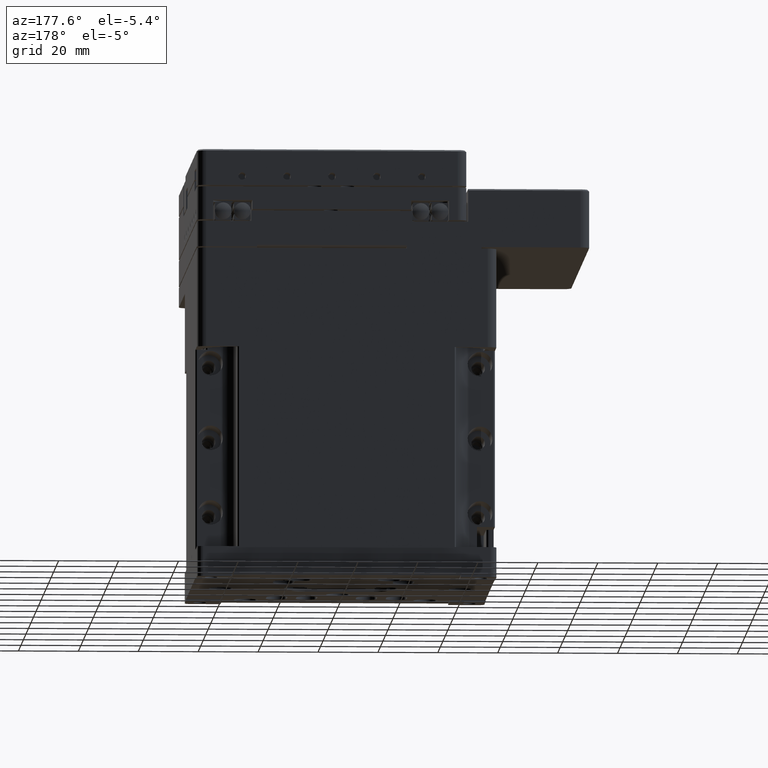
[diagram: clean part render]
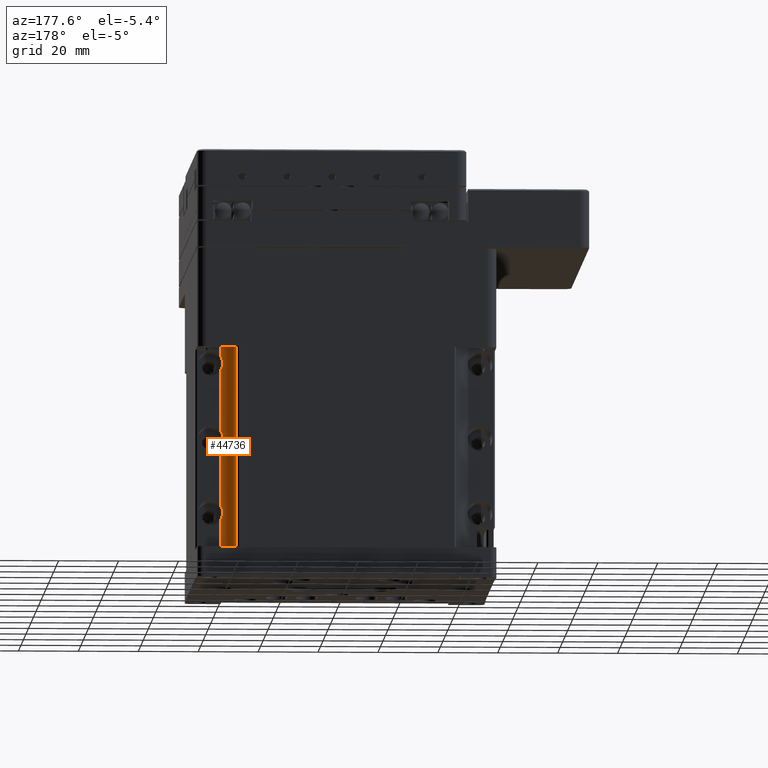
[diagram: same view with one face highlighted and labeled with its STEP entity id]
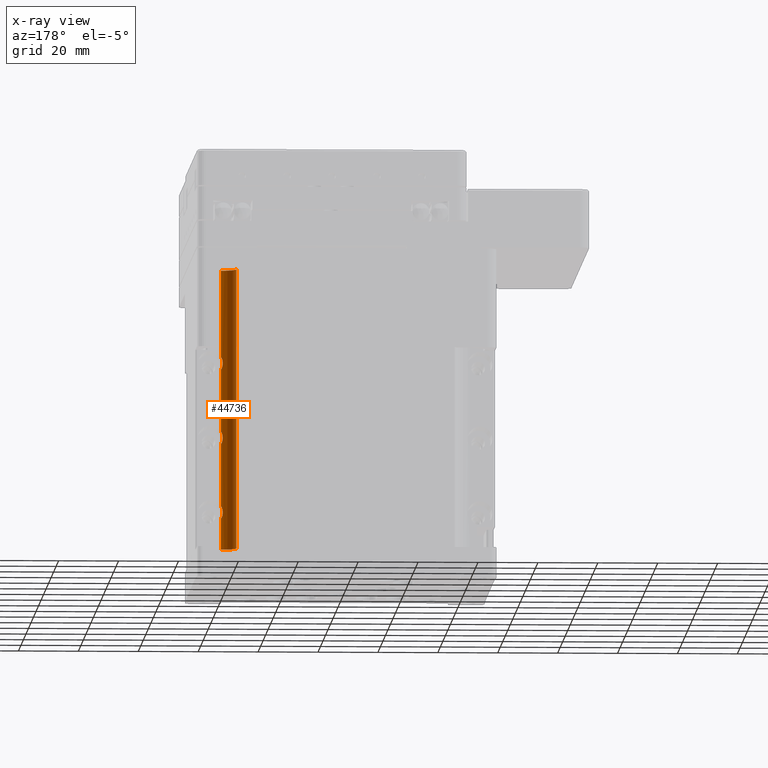
[diagram: x-ray of the same camera — body ghosted, the highlighted face saturated]
A machine part, auxiliary view. The second image highlights one B-rep face of the part: STEP entity #44736.
The next image is the same camera in x-ray: the body ghosted, the highlighted face saturated — about 0% of this face is hidden behind the body in this view.
In plain terms, the highlighted cylindrical surface (edge-blend (fillet) strip) has radius 5 mm, axis along (0, 0, 1).
Its self-contained STEP definition (entity closure, byte-faithful):
#1167 = VERTEX_POINT ( 'NONE', #78454 ) ;
#3674 = CARTESIAN_POINT ( 'NONE',  ( 41.49999999999998579, 36.50000000000000711, 64.68303114957161881 ) ) ;
#4970 = VECTOR ( 'NONE', #51938, 1000.000000000000000 ) ;
#5713 = LINE ( 'NONE', #56951, #57765 ) ;
#6496 = DIRECTION ( 'NONE',  ( 1.000000000000000000, 0.000000000000000000, 0.000000000000000000 ) ) ;
#8106 = CYLINDRICAL_SURFACE ( 'NONE', #36234, 4.999999999999997335 ) ;
#8516 = CARTESIAN_POINT ( 'NONE',  ( 40.87513435997327349, 36.53919936401598534, 37.30621440399449540 ) ) ;
#8536 = CARTESIAN_POINT ( 'NONE',  ( 40.87473429926586022, 36.53924976684502468, 12.87892680073399987 ) ) ;
#8968 = CARTESIAN_POINT ( 'NONE',  ( 41.13827894569544696, 36.51199270938661101, 38.99937102640799935 ) ) ;
#9070 = VERTEX_POINT ( 'NONE', #19261 ) ;
#9450 = CARTESIAN_POINT ( 'NONE',  ( 40.88845584936492372, 36.53746724997755280, 37.11601330408435473 ) ) ;
#9472 = CARTESIAN_POINT ( 'NONE',  ( 40.88845584936493793, 36.53746724997755990, 12.11601330408435651 ) ) ;
#9563 = LINE ( 'NONE', #88581, #44350 ) ;
#9842 = CARTESIAN_POINT ( 'NONE',  ( 41.49999999999998579, 36.50000000000001421, 202.7520022699813182 ) ) ;
#14062 = CARTESIAN_POINT ( 'NONE',  ( 41.29528010496476753, 36.50000000000001421, 64.35480879105701035 ) ) ;
#14524 = CARTESIAN_POINT ( 'NONE',  ( 41.49999999999998579, 36.50000000000000711, 64.68303114957161881 ) ) ;
#15126 = CARTESIAN_POINT ( 'NONE',  ( 40.92887390482040644, 36.53161255176846822, 13.26611702320115960 ) ) ;
#15458 = CARTESIAN_POINT ( 'NONE',  ( 41.49999999999999289, 36.50000000000000711, 60.31696885042837408 ) ) ;
#16642 = VERTEX_POINT ( 'NONE', #37650 ) ;
#18650 = VECTOR ( 'NONE', #59249, 1000.000000000000000 ) ;
#19261 = CARTESIAN_POINT ( 'NONE',  ( 36.49999999999999289, 41.50000000000000711, 0.000000000000000000 ) ) ;
#21601 = CARTESIAN_POINT ( 'NONE',  ( 40.92887390482040644, 36.53161255176846112, 63.26611702320113295 ) ) ;
#22224 = ORIENTED_EDGE ( 'NONE', *, *, #41315, .F. ) ;
#22233 = DIRECTION ( 'NONE',  ( 0.000000000000000000, 0.000000000000000000, 1.000000000000000000 ) ) ;
#22309 = ORIENTED_EDGE ( 'NONE', *, *, #45845, .F. ) ;
#23102 = CARTESIAN_POINT ( 'NONE',  ( 41.14069139553749466, 36.51179586516665410, 35.99385728734208101 ) ) ;
#23249 = LINE ( 'NONE', #23698, #4970 ) ;
#23698 = CARTESIAN_POINT ( 'NONE',  ( 41.49999999999998579, 36.50000000000001421, 202.7520022699813182 ) ) ;
#24019 = CARTESIAN_POINT ( 'NONE',  ( 40.87473429926583890, 36.53924976684502468, 37.87892680073399987 ) ) ;
#24431 = EDGE_CURVE ( 'NONE', #9070, #70181, #5713, .T. ) ;
#26539 = VERTEX_POINT ( 'NONE', #78280 ) ;
#26766 = CARTESIAN_POINT ( 'NONE',  ( 41.49999999999998579, 41.50000000000000711, 0.000000000000000000 ) ) ;
#28123 = CARTESIAN_POINT ( 'NONE',  ( 41.49999999999998579, 36.50000000000000711, 39.68303114957166144 ) ) ;
#28355 = FACE_OUTER_BOUND ( 'NONE', #88163, .T. ) ;
#28575 = VERTEX_POINT ( 'NONE', #39310 ) ;
#28658 = CARTESIAN_POINT ( 'NONE',  ( 40.88845584936495925, 36.53746724997754569, 62.11601330408434052 ) ) ;
#29132 = CARTESIAN_POINT ( 'NONE',  ( 40.87473429926586732, 36.53924976684501047, 62.87892680073396434 ) ) ;
#29622 = DIRECTION ( 'NONE',  ( -0.000000000000000000, -0.000000000000000000, -1.000000000000000000 ) ) ;
#30081 = CARTESIAN_POINT ( 'NONE',  ( 41.49999999999998579, 41.50000000000000711, 93.50000000000000000 ) ) ;
#30499 = ORIENTED_EDGE ( 'NONE', *, *, #24431, .T. ) ;
#31098 = CARTESIAN_POINT ( 'NONE',  ( 40.94166196744672703, 36.53119972381401936, 36.73702326457922140 ) ) ;
#31119 = CARTESIAN_POINT ( 'NONE',  ( 40.94166196744674124, 36.53119972381401936, 11.73702326457924805 ) ) ;
#32143 = ORIENTED_EDGE ( 'NONE', *, *, #51724, .F. ) ;
#34483 = EDGE_CURVE ( 'NONE', #68869, #38554, #53986, .T. ) ;
#36234 = AXIS2_PLACEMENT_3D ( 'NONE', #57983, #22233, #57036 ) ;
#36774 = CARTESIAN_POINT ( 'NONE',  ( 41.49999999999998579, 36.50000000000000711, 14.68303114957164368 ) ) ;
#37650 = CARTESIAN_POINT ( 'NONE',  ( 41.49999999999998579, 36.50000000000000711, 10.31696885042837586 ) ) ;
#38554 = VERTEX_POINT ( 'NONE', #44610 ) ;
#39310 = CARTESIAN_POINT ( 'NONE',  ( 41.49999999999999289, 36.50000000000000711, 60.31696885042837408 ) ) ;
#39869 = DIRECTION ( 'NONE',  ( 0.000000000000000000, 0.000000000000000000, 1.000000000000000000 ) ) ;
#40491 = ORIENTED_EDGE ( 'NONE', *, *, #42195, .F. ) ;
#41315 = EDGE_CURVE ( 'NONE', #38554, #70181, #52483, .T. ) ;
#42195 = EDGE_CURVE ( 'NONE', #28575, #68869, #53912, .T. ) ;
#42241 = DIRECTION ( 'NONE',  ( -0.000000000000000000, -0.000000000000000000, -1.000000000000000000 ) ) ;
#42288 = CARTESIAN_POINT ( 'NONE',  ( 40.87513435997329481, 36.53919936401599244, 62.30621440399448829 ) ) ;
#42465 = ORIENTED_EDGE ( 'NONE', *, *, #76769, .F. ) ;
#43813 = CARTESIAN_POINT ( 'NONE',  ( 41.13827894569544696, 36.51199270938661101, 13.99937102640800290 ) ) ;
#43922 = B_SPLINE_CURVE_WITH_KNOTS ( 'NONE', 3,
 ( #58407, #50892, #73920, #87103, #31119, #9472, #44289, #8536, #15126, #43813, #88494, #36774 ),
 .UNSPECIFIED., .F., .F.,
 ( 4, 2, 2, 2, 2, 4 ),
 ( 3.469446951953614189E-18, 0.001144042984282349481, 0.001716064476423524981, 0.002288085968564700697, 0.003432128952847051696, 0.004576171937129403129 ),
 .UNSPECIFIED. ) ;
#44264 = CARTESIAN_POINT ( 'NONE',  ( 41.29524701708539425, 36.50000000000002132, 35.64524425792392748 ) ) ;
#44289 = CARTESIAN_POINT ( 'NONE',  ( 40.87513435997330902, 36.53919936401599955, 12.30621440399450428 ) ) ;
#44350 = VECTOR ( 'NONE', #82440, 1000.000000000000000 ) ;
#44610 = CARTESIAN_POINT ( 'NONE',  ( 41.49999999999998579, 36.50000000000002132, 93.50000000000000000 ) ) ;
#44736 = ADVANCED_FACE ( 'NONE', ( #28355 ), #8106, .F. ) ;
#45664 = CARTESIAN_POINT ( 'NONE',  ( 40.98204878024485964, 36.52661610923141922, 36.54686363016033113 ) ) ;
#45845 = EDGE_CURVE ( 'NONE', #26539, #16642, #23249, .T. ) ;
#46696 = EDGE_CURVE ( 'NONE', #50831, #1167, #73353, .T. ) ;
#50831 = VERTEX_POINT ( 'NONE', #57680 ) ;
#50872 = CARTESIAN_POINT ( 'NONE',  ( 41.49999999999998579, 36.50000000000000711, 39.68303114957166144 ) ) ;
#50892 = CARTESIAN_POINT ( 'NONE',  ( 41.29524701708538004, 36.50000000000001421, 10.64524425792393103 ) ) ;
#51225 = CARTESIAN_POINT ( 'NONE',  ( 40.98204878024485964, 36.52661610923141922, 61.54686363016033113 ) ) ;
#51724 = EDGE_CURVE ( 'NONE', #1167, #72317, #58377, .T. ) ;
#51938 = DIRECTION ( 'NONE',  ( 0.000000000000000000, 0.000000000000000000, 1.000000000000000000 ) ) ;
#52483 = CIRCLE ( 'NONE', #75065, 4.999999999999997335 ) ;
#52707 = CARTESIAN_POINT ( 'NONE',  ( 40.92887390482037802, 36.53161255176847533, 38.26611702320116137 ) ) ;
#53226 = ORIENTED_EDGE ( 'NONE', *, *, #46696, .F. ) ;
#53912 = B_SPLINE_CURVE_WITH_KNOTS ( 'NONE', 3,
 ( #15458, #85571, #71461, #51225, #86968, #28658, #42288, #29132, #21601, #56871, #14062, #14524 ),
 .UNSPECIFIED., .F., .F.,
 ( 4, 2, 2, 2, 2, 4 ),
 ( 6.938893903907227607E-18, 0.001144042984282365961, 0.001716064476423535606, 0.002288085968564705468, 0.003432128952847045191, 0.004576171937129384915 ),
 .UNSPECIFIED. ) ;
#53986 = LINE ( 'NONE', #60572, #89147 ) ;
#56370 = AXIS2_PLACEMENT_3D ( 'NONE', #26766, #42241, #6496 ) ;
#56871 = CARTESIAN_POINT ( 'NONE',  ( 41.13827894569543986, 36.51199270938660391, 63.99937102640795672 ) ) ;
#56951 = CARTESIAN_POINT ( 'NONE',  ( 36.49999999999999289, 41.50000000000000711, 202.7520022699813182 ) ) ;
#57036 = DIRECTION ( 'NONE',  ( 1.000000000000000000, 0.000000000000000000, 0.000000000000000000 ) ) ;
#57680 = CARTESIAN_POINT ( 'NONE',  ( 41.49999999999998579, 36.50000000000000711, 14.68303114957164368 ) ) ;
#57765 = VECTOR ( 'NONE', #78127, 1000.000000000000000 ) ;
#57983 = CARTESIAN_POINT ( 'NONE',  ( 41.49999999999998579, 41.50000000000000711, 202.7520022699813182 ) ) ;
#58377 = B_SPLINE_CURVE_WITH_KNOTS ( 'NONE', 3,
 ( #59773, #44264, #23102, #45664, #31098, #9450, #8516, #24019, #52707, #8968, #65435, #50872 ),
 .UNSPECIFIED., .F., .F.,
 ( 4, 2, 2, 2, 2, 4 ),
 ( 0.000000000000000000, 0.001144042984282388296, 0.001716064476423572686, 0.002288085968564757076, 0.003432128952847105473, 0.004576171937129453436 ),
 .UNSPECIFIED. ) ;
#58407 = CARTESIAN_POINT ( 'NONE',  ( 41.49999999999998579, 36.50000000000000711, 10.31696885042837586 ) ) ;
#59249 = DIRECTION ( 'NONE',  ( 0.000000000000000000, 0.000000000000000000, 1.000000000000000000 ) ) ;
#59773 = CARTESIAN_POINT ( 'NONE',  ( 41.49999999999998579, 36.50000000000000711, 35.31696885042835277 ) ) ;
#60572 = CARTESIAN_POINT ( 'NONE',  ( 41.49999999999998579, 36.50000000000001421, 202.7520022699813182 ) ) ;
#63882 = CIRCLE ( 'NONE', #56370, 4.999999999999997335 ) ;
#65435 = CARTESIAN_POINT ( 'NONE',  ( 41.29528010496476753, 36.50000000000001421, 39.35480879105705299 ) ) ;
#67077 = CARTESIAN_POINT ( 'NONE',  ( 36.49999999999999289, 41.50000000000000711, 93.50000000000000000 ) ) ;
#68869 = VERTEX_POINT ( 'NONE', #3674 ) ;
#70181 = VERTEX_POINT ( 'NONE', #67077 ) ;
#70337 = EDGE_CURVE ( 'NONE', #16642, #50831, #43922, .T. ) ;
#71461 = CARTESIAN_POINT ( 'NONE',  ( 41.14069139553750887, 36.51179586516665410, 60.99385728734209522 ) ) ;
#72317 = VERTEX_POINT ( 'NONE', #28123 ) ;
#73353 = LINE ( 'NONE', #9842, #18650 ) ;
#73920 = CARTESIAN_POINT ( 'NONE',  ( 41.14069139553749466, 36.51179586516665410, 10.99385728734209344 ) ) ;
#75065 = AXIS2_PLACEMENT_3D ( 'NONE', #30081, #29622, #89667 ) ;
#76769 = EDGE_CURVE ( 'NONE', #72317, #28575, #9563, .T. ) ;
#77064 = ORIENTED_EDGE ( 'NONE', *, *, #70337, .F. ) ;
#78127 = DIRECTION ( 'NONE',  ( 0.000000000000000000, 0.000000000000000000, 1.000000000000000000 ) ) ;
#78280 = CARTESIAN_POINT ( 'NONE',  ( 41.49999999999998579, 36.50000000000002132, 0.000000000000000000 ) ) ;
#78454 = CARTESIAN_POINT ( 'NONE',  ( 41.49999999999998579, 36.50000000000000711, 35.31696885042835277 ) ) ;
#82440 = DIRECTION ( 'NONE',  ( 0.000000000000000000, 0.000000000000000000, 1.000000000000000000 ) ) ;
#85153 = ORIENTED_EDGE ( 'NONE', *, *, #34483, .F. ) ;
#85571 = CARTESIAN_POINT ( 'NONE',  ( 41.29524701708538004, 36.50000000000000711, 60.64524425792390616 ) ) ;
#86968 = CARTESIAN_POINT ( 'NONE',  ( 40.94166196744674835, 36.53119972381401936, 61.73702326457922140 ) ) ;
#87103 = CARTESIAN_POINT ( 'NONE',  ( 40.98204878024485964, 36.52661610923141211, 11.54686363016035422 ) ) ;
#87470 = ORIENTED_EDGE ( 'NONE', *, *, #89379, .T. ) ;
#88163 = EDGE_LOOP ( 'NONE', ( #22309, #87470, #30499, #22224, #85153, #40491, #42465, #32143, #53226, #77064 ) ) ;
#88494 = CARTESIAN_POINT ( 'NONE',  ( 41.29528010496476043, 36.50000000000001421, 14.35480879105702634 ) ) ;
#88581 = CARTESIAN_POINT ( 'NONE',  ( 41.49999999999998579, 36.50000000000001421, 202.7520022699813182 ) ) ;
#89147 = VECTOR ( 'NONE', #39869, 1000.000000000000000 ) ;
#89379 = EDGE_CURVE ( 'NONE', #26539, #9070, #63882, .T. ) ;
#89667 = DIRECTION ( 'NONE',  ( 1.000000000000000000, 0.000000000000000000, 0.000000000000000000 ) ) ;